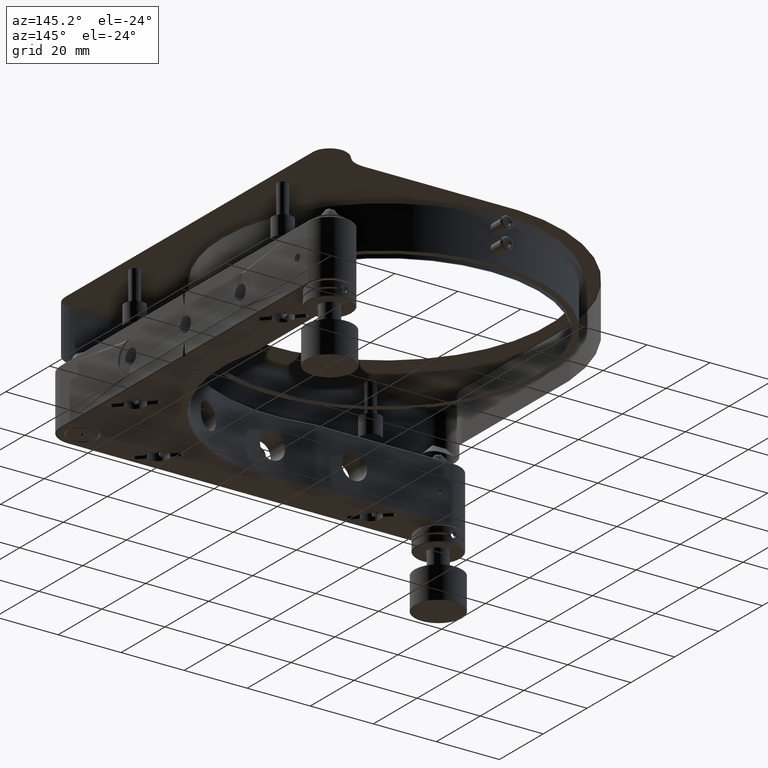
[diagram: clean part render]
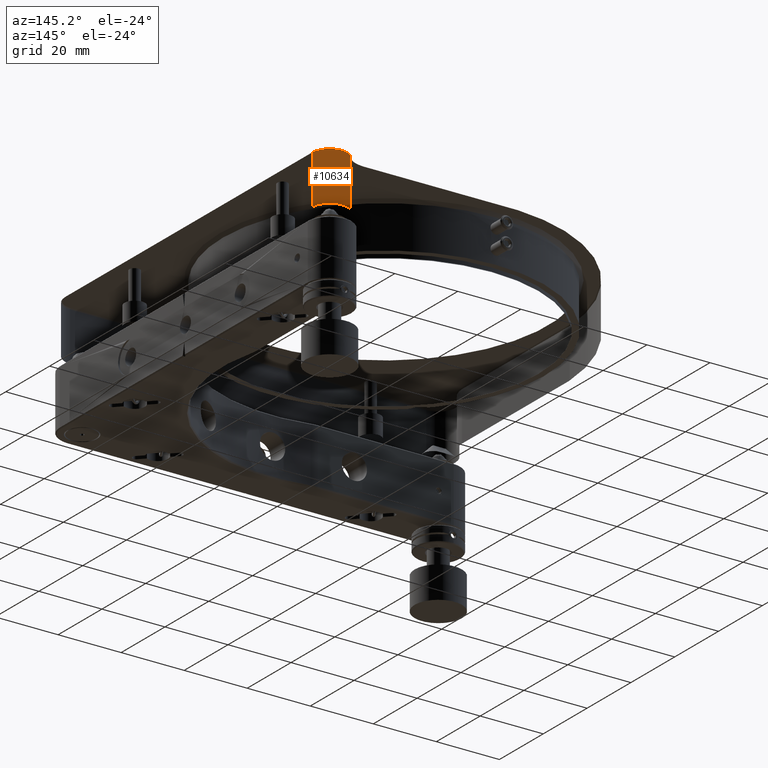
[diagram: same view with one face highlighted and labeled with its STEP entity id]
A machine part, auxiliary view. The second image highlights one B-rep face of the part: STEP entity #10634.
In plain terms, the highlighted cylindrical surface (edge-blend (fillet) strip) has radius 5.5 mm, axis along (0, 0, -1).
Its self-contained STEP definition (entity closure, byte-faithful):
#229 = DIRECTION ( 'NONE',  ( -0.000000000000000000, -0.000000000000000000, -1.000000000000000000 ) ) ;
#1293 = VERTEX_POINT ( 'NONE', #6575 ) ;
#2385 = ORIENTED_EDGE ( 'NONE', *, *, #2478, .F. ) ;
#2478 = EDGE_CURVE ( 'NONE', #7889, #1293, #5744, .T. ) ;
#2678 = CARTESIAN_POINT ( 'NONE',  ( 52.06973713184724772, 59.75925925925927373, 28.99528137423859420 ) ) ;
#2788 = DIRECTION ( 'NONE',  ( -0.000000000000000000, -0.000000000000000000, 1.000000000000000000 ) ) ;
#3222 = VECTOR ( 'NONE', #2788, 1000.000000000000000 ) ;
#3382 = FACE_OUTER_BOUND ( 'NONE', #6334, .T. ) ;
#3730 = EDGE_CURVE ( 'NONE', #1293, #8964, #11257, .T. ) ;
#4015 = LINE ( 'NONE', #12431, #5826 ) ;
#4452 = EDGE_CURVE ( 'NONE', #7889, #5176, #12683, .T. ) ;
#4785 = CARTESIAN_POINT ( 'NONE',  ( 52.06973713184487451, 59.75925925926102167, 13.24528137423513030 ) ) ;
#5134 = CYLINDRICAL_SURFACE ( 'NONE', #15885, 5.499999999999998224 ) ;
#5176 = VERTEX_POINT ( 'NONE', #15923 ) ;
#5744 = LINE ( 'NONE', #2678, #3222 ) ;
#5826 = VECTOR ( 'NONE', #15488, 1000.000000000000000 ) ;
#6334 = EDGE_LOOP ( 'NONE', ( #2385, #8236, #11622, #18139 ) ) ;
#6575 = CARTESIAN_POINT ( 'NONE',  ( 52.06973713184724772, 59.75925925925927373, 28.74528137423860130 ) ) ;
#6776 = DIRECTION ( 'NONE',  ( -1.000000000000000000, 0.000000000000000000, 0.000000000000000000 ) ) ;
#7889 = VERTEX_POINT ( 'NONE', #4785 ) ;
#8236 = ORIENTED_EDGE ( 'NONE', *, *, #4452, .T. ) ;
#8964 = VERTEX_POINT ( 'NONE', #18600 ) ;
#10151 = DIRECTION ( 'NONE',  ( 0.000000000000000000, 0.000000000000000000, -1.000000000000000000 ) ) ;
#10634 = ADVANCED_FACE ( 'NONE', ( #3382 ), #5134, .F. ) ;
#11257 = CIRCLE ( 'NONE', #16159, 5.499999999999998224 ) ;
#11622 = ORIENTED_EDGE ( 'NONE', *, *, #13445, .F. ) ;
#12336 = AXIS2_PLACEMENT_3D ( 'NONE', #21444, #229, #18381 ) ;
#12431 = CARTESIAN_POINT ( 'NONE',  ( 61.99999999999996447, 56.50000000000001421, 28.99528137423859420 ) ) ;
#12683 = CIRCLE ( 'NONE', #12336, 5.500000000011794121 ) ;
#13445 = EDGE_CURVE ( 'NONE', #8964, #5176, #4015, .T. ) ;
#15488 = DIRECTION ( 'NONE',  ( 0.000000000000000000, 0.000000000000000000, -1.000000000000000000 ) ) ;
#15885 = AXIS2_PLACEMENT_3D ( 'NONE', #18472, #10151, #6776 ) ;
#15923 = CARTESIAN_POINT ( 'NONE',  ( 61.87500000000019185, 56.50000000000002132, 13.12028137422323226 ) ) ;
#16159 = AXIS2_PLACEMENT_3D ( 'NONE', #19304, #21055, #19194 ) ;
#18139 = ORIENTED_EDGE ( 'NONE', *, *, #3730, .F. ) ;
#18381 = DIRECTION ( 'NONE',  ( 0.000000000000000000, 1.000000000000000000, 0.000000000000000000 ) ) ;
#18472 = CARTESIAN_POINT ( 'NONE',  ( 56.49999999999996447, 56.50000000000002842, 28.99528137423859420 ) ) ;
#18600 = CARTESIAN_POINT ( 'NONE',  ( 61.99999999999997158, 56.50000000000002132, 28.74528137423860130 ) ) ;
#19194 = DIRECTION ( 'NONE',  ( -1.000000000000000000, 0.000000000000000000, 0.000000000000000000 ) ) ;
#19304 = CARTESIAN_POINT ( 'NONE',  ( 56.49999999999996447, 56.50000000000002842, 28.74528137423860130 ) ) ;
#21055 = DIRECTION ( 'NONE',  ( 0.000000000000000000, 0.000000000000000000, -1.000000000000000000 ) ) ;
#21444 = CARTESIAN_POINT ( 'NONE',  ( 56.49999999999996447, 56.50000000000002842, 13.24528137422475993 ) ) ;